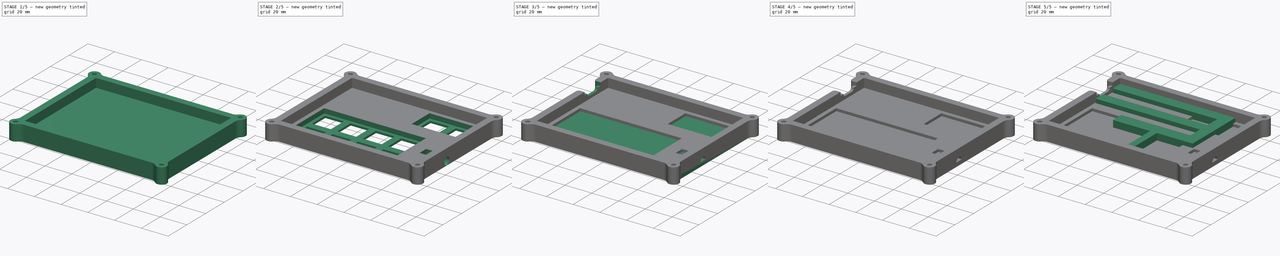
[diagram: build sequence overview — one tinted view per stage of 5, left to right]
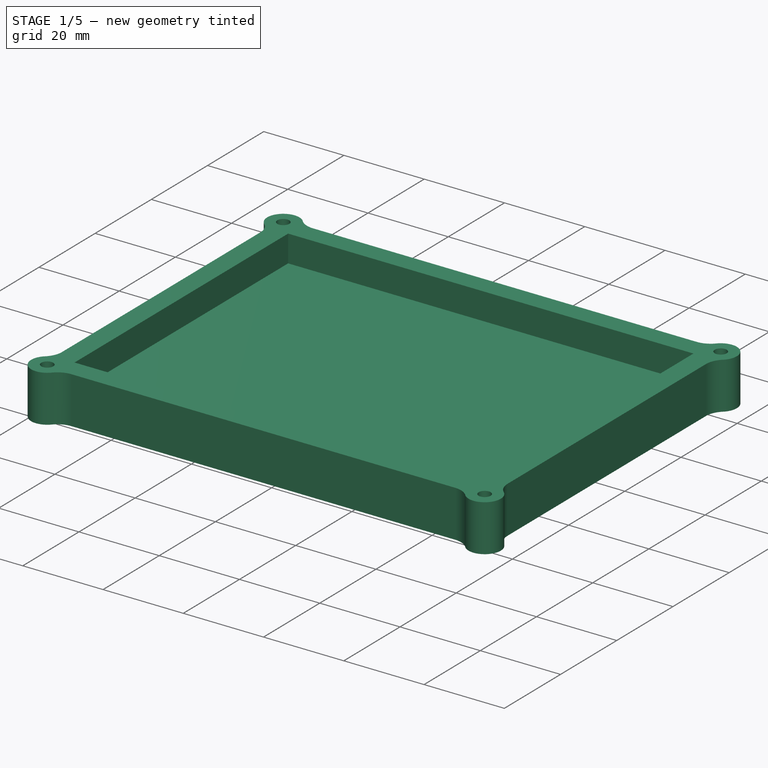
[diagram: stage 1 of 5 — iso view after this stage's code; geometry added in this stage tinted green]
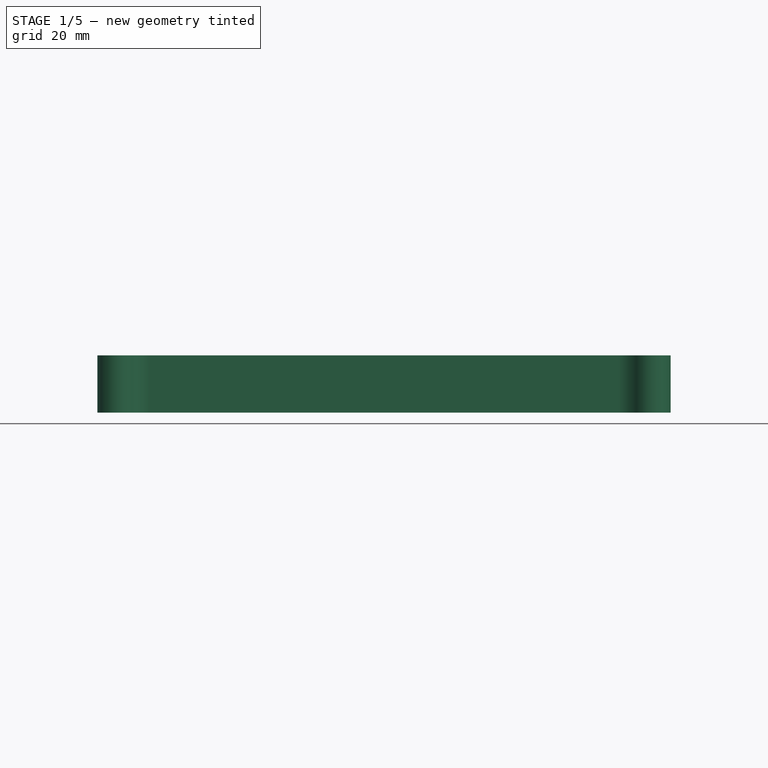
[diagram: stage 1 of 5 — front view after this stage's code; geometry added in this stage tinted green]
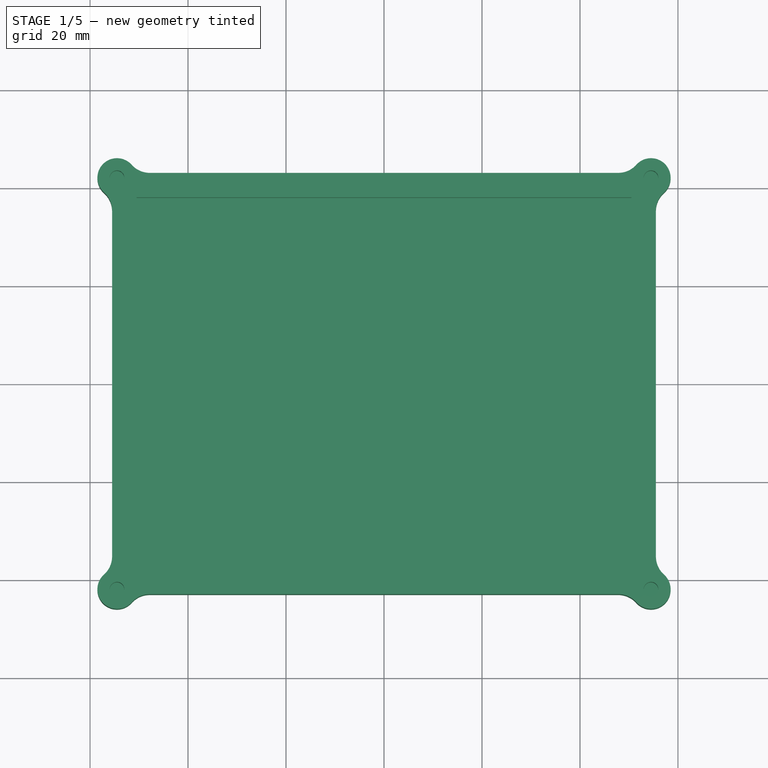
[diagram: stage 1 of 5 — top view after this stage's code; geometry added in this stage tinted green]
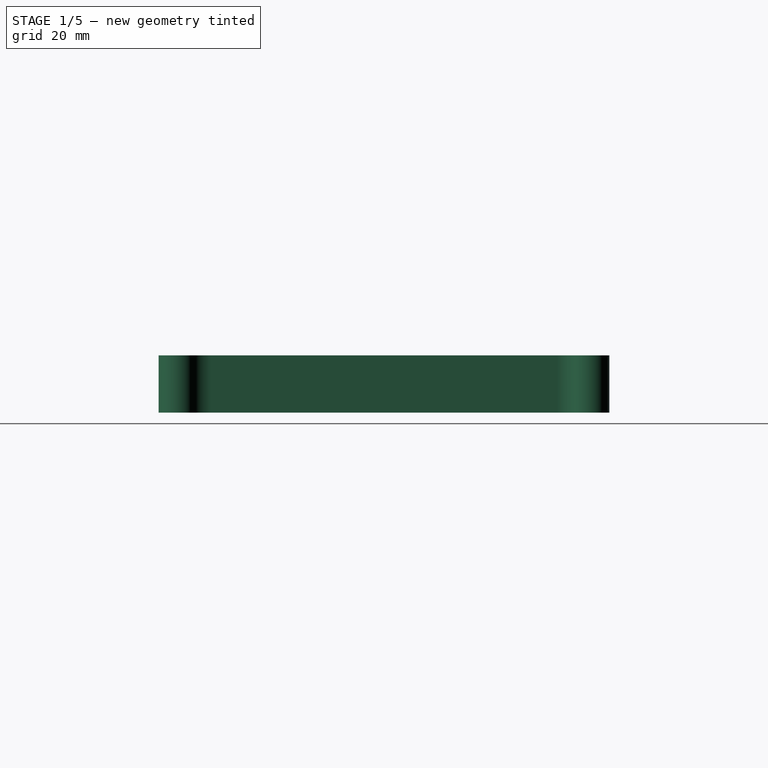
[diagram: stage 1 of 5 — right view after this stage's code; geometry added in this stage tinted green]
FCSTD DOCUMENT  (FreeCAD 1.0R39319 (Git))
Label: case
License: All rights reserved
LicenseURL: https://en.wikipedia.org/wiki/All_rights_reserved
objects: Sketcher::SketchObject×17, PartDesign::Pocket×13, PartDesign::Pad×6, PartDesign::Fillet×4, PartDesign::Body×2, PartDesign::ShapeBinder×2, App::VarSet×1
note: 107 computed .brp shape members not serialized (recipe doc carries the construction recipe); baked Part::Feature solids carry a one-line shape summary decoded from their .brp

FEATURE [PartDesign::Body] Body  label="Bottom"
  AllowCompound = false
  Group = -> [Sketch,Sketch001,Pad,Sketch002,Pad001,Sketch003,Pocket,Pocket001,Sketch004,Pad002,Sketch005,Pocket002,Fillet,Sketch006,Pad003,Sketch007,Pocket003,Fillet001]
  Origin = -> Origin
  Tip = -> Fillet001
FEATURE [PartDesign::ShapeBinder] ShapeBinder  label="ShapeBinder (Base)"
  Support = -> [Sketch]
  TraceSupport = false
FEATURE [PartDesign::Pad] Pad004  label="Top base"
  Direction = (0,0,1)
  Length = 11.7
  Length2 = 10
  Profile = -> ShapeBinder
  Refine = true
  Suppressed = false
  Type = 0
  expr: Length = VarSet.pcb_elevation + 1.6 mm + 5 mm + 0.1 mm
FEATURE [PartDesign::ShapeBinder] ShapeBinder001  label="ShapeBinder (Screw walls)"
  Support = -> [Sketch001]
  TraceSupport = false
FEATURE [PartDesign::Pad] Pad005  label="Top screw walls"
  BaseFeature = -> Pad004
  Direction = (0,0,1)
  Length = 11.7
  Length2 = 10
  Profile = -> ShapeBinder001
  Refine = true
  Suppressed = false
  Type = 0
  expr: Length = VarSet.pcb_elevation + 1.6 mm + 5 mm + 0.1 mm
FEATURE [Sketcher::SketchObject] Sketch008
  ArcFitTolerance = 1e-06
  AttachmentSupport = -> [Pad005]
  FullyConstrained = true
  MakeInternals = false
  MapMode = 5
  Placement = pos=(0,0,11.7) rot=(0,0,1;0rad)
  expr: Constraints[0] = VarSet.screw_head_diameter / 2 + VarSet.wall_thickness / 4 + VarSet.pcb_tolerance + 37.5 mm
  expr: Constraints[1] = VarSet.screw_thread_diameter
  expr: Constraints[2] = VarSet.screw_head_diameter / 2 + VarSet.wall_thickness / 4 + VarSet.pcb_tolerance + 50 mm
  sketch-geometry (4):
    g0: Circle CenterX=54.5 CenterY=42 CenterZ=0 NormalX=0 NormalY=0 NormalZ=1 AngleXU=0 Radius=1.5
    g1: Circle CenterX=-54.5 CenterY=42 CenterZ=0 NormalX=0 NormalY=0 NormalZ=1 AngleXU=0 Radius=1.5
    g2: Circle CenterX=-54.5 CenterY=-42 CenterZ=0 NormalX=0 NormalY=0 NormalZ=1 AngleXU=0 Radius=1.5
    g3: Circle CenterX=54.5 CenterY=-42 CenterZ=0 NormalX=0 NormalY=0 NormalZ=1 AngleXU=0 Radius=1.5
  constraints (10):
    c: Distance(g0,g-1) = 42
    c: Diameter(g0) = 3
    c: Distance(g0,g-2) = 54.5
    c: Equal(g3,g2)
    c: Equal(g2,g1)
    c: Equal(g1,g0)
    c: Symmetric(g1,g0,g-2)
    c: Vertical(g1,g2)
    c: Horizontal(g3,g2)
    c: Symmetric(g3,g0,g-1)
FEATURE [PartDesign::Pocket] Pocket004  label="Top screw holes"
  BaseFeature = -> Pad005
  Direction = (0,0,-1)
  Length = 7
  Length2 = 5
  Profile = -> Sketch008
  ReferenceAxis = -> Sketch008 [N_Axis]
  Refine = true
  Suppressed = false
  Type = 0
  expr: Length = VarSet.screw_length - VarSet.base_thickness
FEATURE [PartDesign::Fillet] Fillet002  label="Top screw-base fillets"
  Base = -> Pocket004 [Edge30,Edge31,Edge14,Edge32,Edge4,Edge2,Edge29,Edge28]
  BaseFeature = -> Pocket004
  Radius = 5
  Refine = true
  SupportTransform = false
  Suppressed = false
  UseAllEdges = false
  expr: Radius = VarSet.screw_base_fillet_radius
FEATURE [Sketcher::SketchObject] Sketch009
  ArcFitTolerance = 1e-06
  AttachmentSupport = -> [Fillet002]
  FullyConstrained = true
  MakeInternals = false
  MapMode = 5
  Placement = pos=(0,0,11.7) rot=(0,0,1;0rad)
  expr: Constraints[8] = 75 mm + VarSet.pcb_tolerance * 2
  expr: Constraints[9] = 100 mm + VarSet.pcb_tolerance * 2
  sketch-geometry (4):
    g0: LineSegment StartX=-50.5 StartY=38 StartZ=0 EndX=-50.5 EndY=-38 EndZ=0
    g1: LineSegment StartX=-50.5 StartY=-38 StartZ=0 EndX=50.5 EndY=-38 EndZ=0
    g2: LineSegment StartX=50.5 StartY=-38 StartZ=0 EndX=50.5 EndY=38 EndZ=0
    g3: LineSegment StartX=50.5 StartY=38 StartZ=0 EndX=-50.5 EndY=38 EndZ=0
  constraints (10):
    c: Coincident(g0,g1)
    c: Coincident(g1,g2)
    c: Coincident(g2,g3)
    c: Coincident(g3,g0)
    c: Vertical(g0)
    c: Horizontal(g1)
    c: Symmetric(g2,g0,g-2)
    c: Symmetric(g2,g1,g-1)
    c: DistanceY(g2,g2) = 76
    c: DistanceX(g3,g3) = 101
FEATURE [PartDesign::Pocket] Pocket005  label="Hole"
  BaseFeature = -> Fillet002
  Direction = (0,0,-1)
  Length = 6.7
  Length2 = 5
  Profile = -> Sketch009
  ReferenceAxis = -> Sketch009 [N_Axis]
  Refine = true
  Suppressed = false
  Type = 0
  expr: Length = VarSet.pcb_elevation + 1.6 mm + 0.1 mm
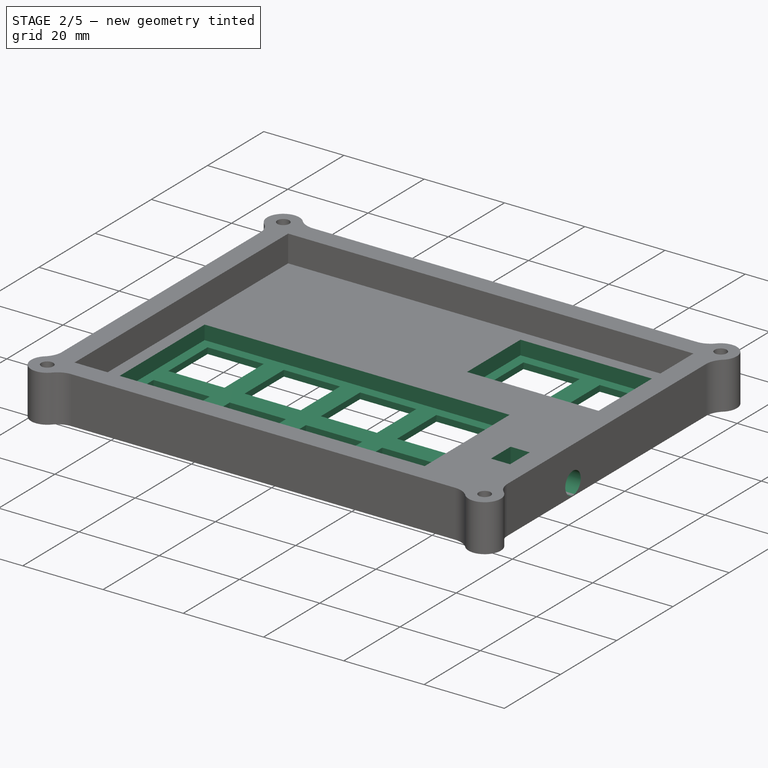
[diagram: stage 2 of 5 — iso view after this stage's code; geometry added in this stage tinted green]
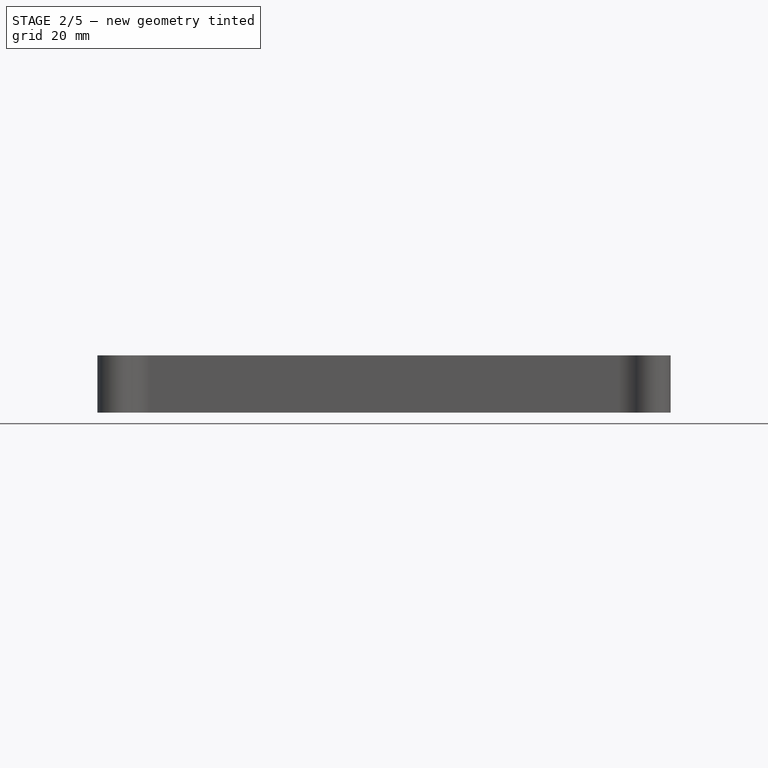
[diagram: stage 2 of 5 — front view after this stage's code; geometry added in this stage tinted green]
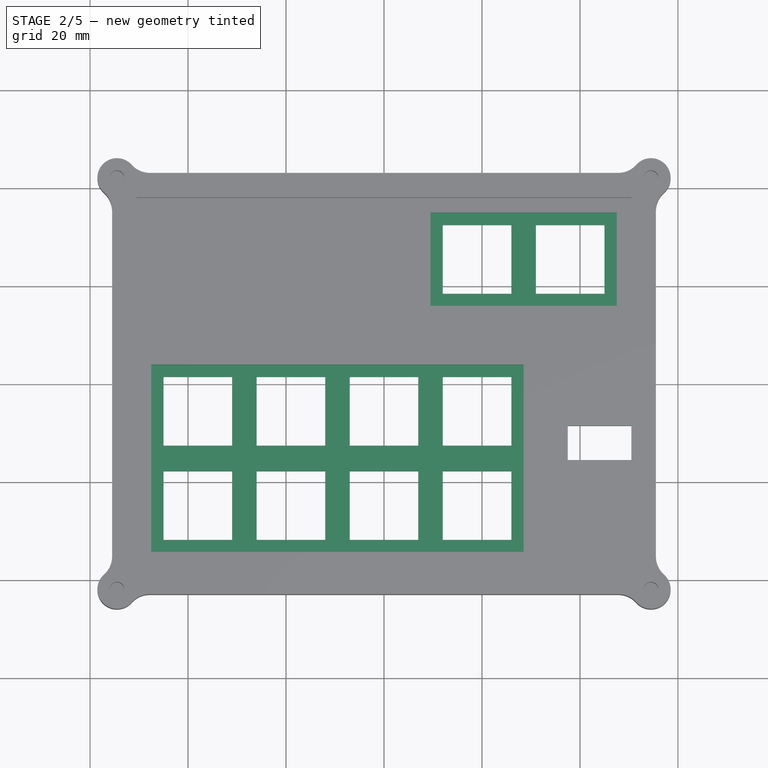
[diagram: stage 2 of 5 — top view after this stage's code; geometry added in this stage tinted green]
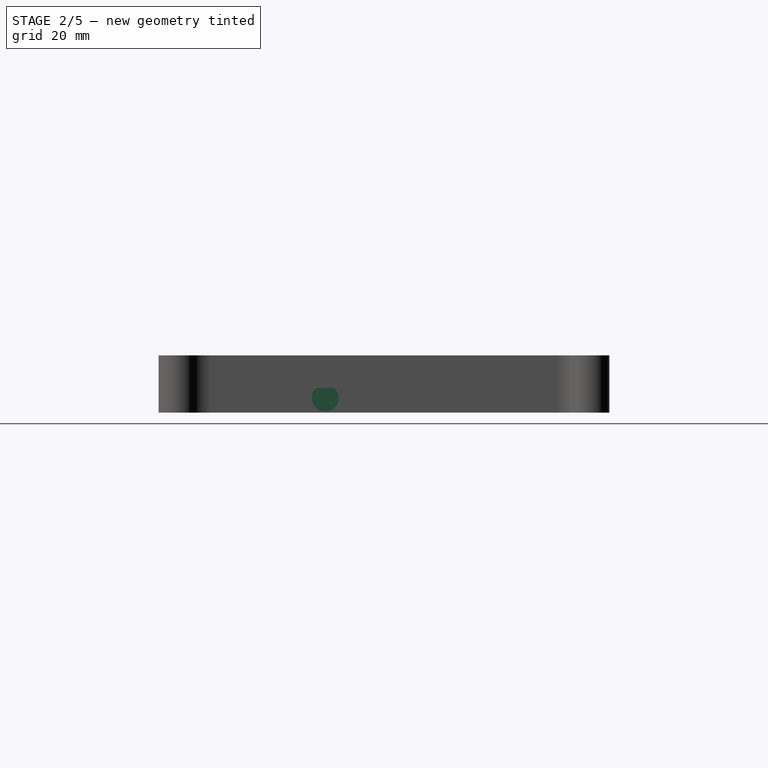
[diagram: stage 2 of 5 — right view after this stage's code; geometry added in this stage tinted green]
FEATURE [Sketcher::SketchObject] Sketch011
  ArcFitTolerance = 1e-06
  AttachmentSupport = -> [Pocket005]
  FullyConstrained = true
  MakeInternals = false
  MapMode = 5
  Placement = pos=(0,0,5) rot=(0,0,1;0rad)
  sketch-geometry (8):
    g0: LineSegment StartX=-47.5 StartY=4 StartZ=0 EndX=-47.5 EndY=-34.25 EndZ=0
    g1: LineSegment StartX=-47.5 StartY=-34.25 StartZ=0 EndX=28.5 EndY=-34.25 EndZ=0
    g2: LineSegment StartX=28.5 StartY=-34.25 StartZ=0 EndX=28.5 EndY=4 EndZ=0
    g3: LineSegment StartX=28.5 StartY=4 StartZ=0 EndX=-47.5 EndY=4 EndZ=0
    g4: LineSegment StartX=9.5 StartY=16 StartZ=0 EndX=47.5 EndY=16 EndZ=0
    g5: LineSegment StartX=47.5 StartY=16 StartZ=0 EndX=47.5 EndY=35 EndZ=0
    g6: LineSegment StartX=47.5 StartY=35 StartZ=0 EndX=9.5 EndY=35 EndZ=0
    g7: LineSegment StartX=9.5 StartY=35 StartZ=0 EndX=9.5 EndY=16 EndZ=0
  constraints (24):
    c: Coincident(g0,g1)
    c: Coincident(g1,g2)
    c: Coincident(g2,g3)
    c: Coincident(g3,g0)
    c: Vertical(g0)
    c: Vertical(g2)
    c: Horizontal(g1)
    c: Horizontal(g3)
    c: Distance(g0,g-1) = 4
    c: Distance(g0,g-2) = 47.5
    c: DistanceX(g1,g1) = 76
    c: DistanceY(g0,g0) = 38.25
    c: Coincident(g4,g5)
    c: Coincident(g5,g6)
    c: Coincident(g6,g7)
    c: Coincident(g7,g4)
    c: Horizontal(g4)
    c: Horizontal(g6)
    c: Vertical(g5)
    c: Vertical(g7)
    c: Distance(g4,g-1) = 16
    c: Distance(g4,g-2) = 9.5
    c: DistanceY(g7,g7) = 19
    c: DistanceX(g4,g4) = 38
FEATURE [PartDesign::Pocket] Pocket006  label="Key holes"
  BaseFeature = -> Pocket005
  Direction = (0,0,-1)
  Length = 3.5
  Length2 = 5
  Profile = -> Sketch011
  ReferenceAxis = -> Sketch011 [N_Axis]
  Refine = true
  Suppressed = false
  Type = 0
FEATURE [Sketcher::SketchObject] Sketch012
  ArcFitTolerance = 1e-06
  AttachmentSupport = -> [Pocket006]
  FullyConstrained = true
  MakeInternals = false
  MapMode = 5
  Placement = pos=(0,0,1.5) rot=(0,0,1;0rad)
  expr: Constraints[12] = 14 mm + VarSet.switch_tolerance * 2
  sketch-geometry (66):
    g0: LineSegment StartX=-45 StartY=-12.5 StartZ=0 EndX=-45 EndY=1.5 EndZ=0
    g1: LineSegment StartX=-45 StartY=1.5 StartZ=0 EndX=-31 EndY=1.5 EndZ=0
    g2: LineSegment StartX=-31 StartY=1.5 StartZ=0 EndX=-31 EndY=-12.5 EndZ=0
    g3: LineSegment StartX=-31 StartY=-12.5 StartZ=0 EndX=-45 EndY=-12.5 EndZ=0
    g4: LineSegment [constr] StartX=-38 StartY=-12.5 StartZ=0 EndX=-38 EndY=1.5 EndZ=0
    g5: GeomPoint [constr] X=-38 Y=-5.5 Z=0
    g6: LineSegment StartX=-26 StartY=1.5 StartZ=0 EndX=-26 EndY=-12.5 EndZ=0
    g7: LineSegment StartX=-26 StartY=-12.5 StartZ=0 EndX=-12 EndY=-12.5 EndZ=0
    g8: LineSegment StartX=-12 StartY=-12.5 StartZ=0 EndX=-12 EndY=1.5 EndZ=0
    g9: LineSegment StartX=-12 StartY=1.5 StartZ=0 EndX=-26 EndY=1.5 EndZ=0
    g10: LineSegment StartX=-7 StartY=1.5 StartZ=0 EndX=-7 EndY=-12.5 EndZ=0
    g11: LineSegment StartX=-7 StartY=-12.5 StartZ=0 EndX=7 EndY=-12.5 EndZ=0
    g12: LineSegment StartX=7 StartY=-12.5 StartZ=0 EndX=7 EndY=1.5 EndZ=0
    g13: LineSegment StartX=7 StartY=1.5 StartZ=0 EndX=-7 EndY=1.5 EndZ=0
    g14: LineSegment StartX=12 StartY=1.5 StartZ=0 EndX=12 EndY=-12.5 EndZ=0
    g15: LineSegment StartX=12 StartY=-12.5 StartZ=0 EndX=26 EndY=-12.5 EndZ=0
    g16: LineSegment StartX=26 StartY=-12.5 StartZ=0 EndX=26 EndY=1.5 EndZ=0
    g17: LineSegment StartX=26 StartY=1.5 StartZ=0 EndX=12 EndY=1.5 EndZ=0
    g18: LineSegment StartX=-45 StartY=-17.75 StartZ=0 EndX=-45 EndY=-31.75 EndZ=0
    g19: LineSegment StartX=-45 StartY=-31.75 StartZ=0 EndX=-31 EndY=-31.75 EndZ=0
    g20: LineSegment StartX=-31 StartY=-31.75 StartZ=0 EndX=-31 EndY=-17.75 EndZ=0
    g21: LineSegment StartX=-31 StartY=-17.75 StartZ=0 EndX=-45 EndY=-17.75 EndZ=0
    g22: LineSegment StartX=-26 StartY=-17.75 StartZ=0 EndX=-26 EndY=-31.75 EndZ=0
    g23: LineSegment StartX=-26 StartY=-31.75 StartZ=0 EndX=-12 EndY=-31.75 EndZ=0
    g24: LineSegment StartX=-12 StartY=-31.75 StartZ=0 EndX=-12 EndY=-17.75 EndZ=0
    g25: LineSegment StartX=-12 StartY=-17.75 StartZ=0 EndX=-26 EndY=-17.75 EndZ=0
    g26: LineSegment StartX=-7 StartY=-17.75 StartZ=0 EndX=-7 EndY=-31.75 EndZ=0
    g27: LineSegment StartX=-7 StartY=-31.75 StartZ=0 EndX=7 EndY=-31.75 EndZ=0
    g28: LineSegment StartX=7 StartY=-31.75 StartZ=0 EndX=7 EndY=-17.75 EndZ=0
    g29: LineSegment StartX=7 StartY=-17.75 StartZ=0 EndX=-7 EndY=-17.75 EndZ=0
    g30: LineSegment StartX=12 StartY=-17.75 StartZ=0 EndX=12 EndY=-31.75 EndZ=0
    g31: LineSegment StartX=12 StartY=-31.75 StartZ=0 EndX=26 EndY=-31.75 EndZ=0
    g32: LineSegment StartX=26 StartY=-31.75 StartZ=0 EndX=26 EndY=-17.75 EndZ=0
    g33: LineSegment StartX=26 StartY=-17.75 StartZ=0 EndX=12 EndY=-17.75 EndZ=0
    g34: LineSegment [constr] StartX=-19 StartY=1.5 StartZ=0 EndX=-19 EndY=-12.5 EndZ=0
    g35: GeomPoint [constr] X=-19 Y=-5.5 Z=0
    g36: LineSegment [constr] StartX=1.6e-15 StartY=1.5 StartZ=0 EndX=1.9e-15 EndY=-12.5 EndZ=0
    g37: LineSegment [constr] StartX=19 StartY=1.5 StartZ=0 EndX=19 EndY=-12.5 EndZ=0
    g38: LineSegment [constr] StartX=19 StartY=-17.75 StartZ=0 EndX=19 EndY=-31.75 EndZ=0
    g39: LineSegment [constr] StartX=-3e-16 StartY=-17.75 StartZ=0 EndX=-2e-16 EndY=-31.75 EndZ=0
    g40: LineSegment [constr] StartX=-19 StartY=-17.75 StartZ=0 EndX=-19 EndY=-31.75 EndZ=0
    g41: LineSegment [constr] StartX=-38 StartY=-17.75 StartZ=0 EndX=-38 EndY=-31.75 EndZ=0
    g42: GeomPoint [constr] X=1.7e-15 Y=-5.5 Z=0
    g43: GeomPoint [constr] X=19 Y=-5.5 Z=0
    g44: GeomPoint [constr] X=19 Y=-24.75 Z=0
    g45: GeomPoint [constr] X=0 Y=-24.75 Z=0
    g46: GeomPoint [constr] X=-19 Y=-24.75 Z=0
    g47: GeomPoint [constr] X=-38 Y=-24.75 Z=0
    g48: LineSegment [constr] StartX=-38 StartY=-5.5 StartZ=0 EndX=-19 EndY=-5.5 EndZ=0
    g49: LineSegment [constr] StartX=-19 StartY=-5.5 StartZ=0 EndX=0 EndY=-5.5 EndZ=0
    g50: LineSegment [constr] StartX=1.7e-15 StartY=-5.5 StartZ=0 EndX=19 EndY=-5.5 EndZ=0
    g51: LineSegment [constr] StartX=19 StartY=-24.75 StartZ=0 EndX=0 EndY=-24.75 EndZ=0
    g52: LineSegment [constr] StartX=0 StartY=-24.75 StartZ=0 EndX=-19 EndY=-24.75 EndZ=0
    g53: LineSegment [constr] StartX=-19 StartY=-24.75 StartZ=0 EndX=-38 EndY=-24.75 EndZ=0
    g54: LineSegment StartX=12 StartY=18.5 StartZ=0 EndX=26 EndY=18.5 EndZ=0
    g55: LineSegment StartX=26 StartY=18.5 StartZ=0 EndX=26 EndY=32.5 EndZ=0
    g56: LineSegment StartX=26 StartY=32.5 StartZ=0 EndX=12 EndY=32.5 EndZ=0
    g57: LineSegment StartX=12 StartY=32.5 StartZ=0 EndX=12 EndY=18.5 EndZ=0
    g58: LineSegment StartX=31 StartY=18.5 StartZ=0 EndX=45 EndY=18.5 EndZ=0
    g59: LineSegment StartX=45 StartY=18.5 StartZ=0 EndX=45 EndY=32.5 EndZ=0
    g60: LineSegment StartX=45 StartY=32.5 StartZ=0 EndX=31 EndY=32.5 EndZ=0
    g61: LineSegment StartX=31 StartY=32.5 StartZ=0 EndX=31 EndY=18.5 EndZ=0
    g62: LineSegment [constr] StartX=19 StartY=32.5 StartZ=0 EndX=19 EndY=18.5 EndZ=0
    g63: LineSegment [constr] StartX=38 StartY=32.5 StartZ=0 EndX=38 EndY=18.5 EndZ=0
    g64: GeomPoint [constr] X=19 Y=25.5 Z=0
    g65: GeomPoint [constr] X=38 Y=25.5 Z=0
  constraints (162):
    c: Coincident(g0,g1)
    c: Coincident(g1,g2)
    c: Coincident(g2,g3)
    c: Coincident(g3,g0)
    c: Vertical(g0)
    c: Vertical(g2)
    c: Horizontal(g1)
    c: Horizontal(g3)
    c: Symmetric(g1,g1,g4)
    c: Symmetric(g3,g3,g4)
    c: Symmetric(g4,g4,g5)
    c: Distance(g5,g-1) = 5.5
    c: DistanceY(g0,g0) = 14
    c: Distance(g5,g-2) = 38
    c: Coincident(g6,g7)
    c: Coincident(g7,g8)
    c: Coincident(g8,g9)
    c: Coincident(g9,g6)
    c: Vertical(g6)
    c: Vertical(g8)
    c: Horizontal(g7)
    c: Horizontal(g9)
    c: Coincident(g10,g11)
    c: Coincident(g11,g12)
    c: Coincident(g12,g13)
    c: Coincident(g13,g10)
    c: Vertical(g10)
    c: Vertical(g12)
    c: Horizontal(g11)
    c: Horizontal(g13)
    c: Coincident(g14,g15)
    c: Coincident(g15,g16)
    c: Coincident(g16,g17)
    c: Coincident(g17,g14)
    c: Vertical(g14)
    c: Vertical(g16)
    c: Horizontal(g15)
    c: Horizontal(g17)
    c: Coincident(g18,g19)
    c: Coincident(g19,g20)
    c: Coincident(g20,g21)
    c: Coincident(g21,g18)
    c: Vertical(g18)
    c: Vertical(g20)
    c: Horizontal(g19)
    c: Horizontal(g21)
    c: Coincident(g22,g23)
    c: Coincident(g23,g24)
    c: Coincident(g24,g25)
    c: Coincident(g25,g22)
    c: Vertical(g22)
    c: Vertical(g24)
    c: Horizontal(g23)
    c: Horizontal(g25)
    c: Coincident(g26,g27)
    c: Coincident(g27,g28)
    c: Coincident(g28,g29)
    c: Coincident(g29,g26)
    c: Vertical(g26)
    c: Vertical(g28)
    c: Horizontal(g27)
    c: Horizontal(g29)
    c: Coincident(g30,g31)
    c: Coincident(g31,g32)
    c: Coincident(g32,g33)
    c: Coincident(g33,g30)
    c: Vertical(g30)
    c: Vertical(g32)
    c: Horizontal(g31)
    c: Horizontal(g33)
    c: Equal(g0,g1)
    c: Equal(g1,g6)
    c: Equal(g6,g9)
    c: Equal(g9,g10)
    c: Equal(g10,g13)
    c: Equal(g13,g14)
    c: Equal(g14,g17)
    c: Equal(g30,g33)
    c: Equal(g33,g26)
    c: Equal(g26,g29)
    c: Equal(g29,g22)
    c: Equal(g22,g25)
    c: Equal(g25,g18)
    c: Equal(g18,g21)
    c: Symmetric(g7,g7,g34)
    c: Symmetric(g9,g9,g34)
    c: Symmetric(g34,g34,g35)
    c: Symmetric(g36,g36,g42)
    c: Symmetric(g13,g13,g36)
    c: Symmetric(g11,g11,g36)
    c: Symmetric(g37,g37,g43)
    c: Symmetric(g17,g17,g37)
    c: Symmetric(g15,g15,g37)
    c: Symmetric(g38,g38,g44)
    c: Symmetric(g33,g33,g38)
    c: Symmetric(g31,g31,g38)
    c: Symmetric(g39,g39,g45)
    c: Symmetric(g29,g29,g39)
    c: Symmetric(g27,g27,g39)
    c: Symmetric(g40,g40,g46)
    c: Symmetric(g23,g23,g40)
    c: Symmetric(g25,g25,g40)
    c: Symmetric(g41,g41,g47)
    c: Symmetric(g21,g21,g41)
    c: Symmetric(g19,g19,g41)
    c: DistanceY(g47,g5) = 19.25
    c: Vertical(g0,g18)
    c: Horizontal(g0,g6)
    c: Horizontal(g6,g10)
    c: Horizontal(g10,g14)
    c: Horizontal(g18,g22)
    c: Horizontal(g22,g26)
    c: Horizontal(g26,g30)
    c: Coincident(g48,g5)
    c: Coincident(g48,g35)
    c: Coincident(g49,g35)
    c: Coincident(g49,g42)
    c: Coincident(g50,g42)
    c: Coincident(g50,g43)
    c: Coincident(g51,g44)
    c: Coincident(g51,g45)
    c: Coincident(g52,g45)
    c: Coincident(g52,g46)
    c: Coincident(g53,g46)
    c: Coincident(g53,g47)
    c: Equal(g53,g52)
    c: Equal(g52,g51)
    c: Equal(g48,g49)
    c: Equal(g49,g50)
    c: DistanceX(g48,g48) = 19
    c: DistanceX(g53,g53) = 19
    c: Coincident(g54,g55)
    c: Coincident(g55,g56)
    c: Coincident(g56,g57)
    c: Coincident(g57,g54)
    c: Horizontal(g54)
    c: Horizontal(g56)
    c: Vertical(g55)
    c: Vertical(g57)
    c: Coincident(g58,g59)
    c: Coincident(g59,g60)
    c: Coincident(g60,g61)
    c: Coincident(g61,g58)
    c: Horizontal(g58)
    c: Horizontal(g60)
    c: Vertical(g59)
    c: Vertical(g61)
    c: Horizontal(g54,g58)
    c: Equal(g58,g54)
    c: Equal(g54,g57)
    c: Equal(g57,g61)
    c: Symmetric(g63,g63,g65)
    c: Symmetric(g62,g62,g64)
    c: Symmetric(g56,g56,g62)
    c: Symmetric(g54,g54,g62)
    c: Symmetric(g58,g58,g63)
    c: Symmetric(g60,g60,g63)
    c: DistanceX(g64,g65) = 19
    c: DistanceY(g57,g57) = 14
    c: Distance(g54,g-2) = 12
    c: Distance(g54,g-1) = 18.5
    c: Equal(g30,g17)
FEATURE [PartDesign::Pocket] Pocket007  label="Key holes 2"
  BaseFeature = -> Pocket006
  Direction = (0,0,-1)
  Length = 1.5
  Length2 = 5
  Profile = -> Sketch012
  ReferenceAxis = -> Sketch012 [N_Axis]
  Refine = true
  Suppressed = false
  Type = 0
FEATURE [Sketcher::SketchObject] Sketch015
  ArcFitTolerance = 1e-06
  FullyConstrained = true
  MakeInternals = false
  MapMode = 5
  Placement = pos=(0,0,5) rot=(0,0,1;0rad)
  expr: Constraints[11] = 12.5 mm + VarSet.pcb_tolerance
  sketch-geometry (4):
    g0: LineSegment StartX=50.5 StartY=-15.5 StartZ=0 EndX=50.5 EndY=-8.5 EndZ=0
    g1: LineSegment StartX=50.5 StartY=-8.5 StartZ=0 EndX=37.5 EndY=-8.5 EndZ=0
    g2: LineSegment StartX=50.5 StartY=-15.5 StartZ=0 EndX=37.5 EndY=-15.5 EndZ=0
    g3: LineSegment StartX=37.5 StartY=-15.5 StartZ=0 EndX=37.5 EndY=-8.5 EndZ=0
  constraints (12):
    c: PointOnObject(g0,g-3)
    c: Vertical(g0)
    c: DistanceY(g0,g0) = 7
    c: Distance(g0,g-1) = 8.5
    c: Coincident(g1,g0)
    c: Horizontal(g1)
    c: Coincident(g2,g0)
    c: Horizontal(g2)
    c: Coincident(g3,g2)
    c: Coincident(g3,g1)
    c: Vertical(g3)
    c: DistanceX(g1,g1) = 13
FEATURE [PartDesign::Pocket] Pocket010  label="Jack body hole"
  BaseFeature = -> Pocket007
  Direction = (0,0,-1)
  Length = 5
  Length2 = 5
  Profile = -> Sketch015
  ReferenceAxis = -> Sketch015 [N_Axis]
  Refine = true
  Suppressed = false
  Type = 0
FEATURE [Sketcher::SketchObject] Sketch016
  ArcFitTolerance = 1e-06
  AttachmentSupport = -> [Pocket010]
  ExternalGeometry = -> [Pocket010]
  FullyConstrained = true
  MakeInternals = false
  MapMode = 5
  Placement = pos=(55.5,5e-15,0) rot=(0.57735,0.57735,0.57735;2.0944rad)
  sketch-geometry (3):
    g0: LineSegment [constr] StartX=-15.5 StartY=5 StartZ=0 EndX=-8.5 EndY=5 EndZ=0
    g1: Circle CenterX=-12 CenterY=3 CenterZ=0 NormalX=0 NormalY=0 NormalZ=1 AngleXU=0 Radius=2.75
    g2: LineSegment [constr] StartX=-12 StartY=3 StartZ=0 EndX=-12 EndY=5 EndZ=0
  constraints (7):
    c: Coincident(g0,g-3)
    c: Coincident(g0,g-4)
    c: Diameter(g1) = 5.5
    c: Coincident(g2,g1)
    c: Symmetric(g0,g0,g2)
    c: Vertical(g2)
    c: DistanceY(g2,g2) = -2
FEATURE [PartDesign::Pocket] Pocket011  label="Jack hole"
  BaseFeature = -> Pocket010
  Direction = (-1,0,0)
  Length = 5
  Length2 = 5
  Profile = -> Sketch016
  ReferenceAxis = -> Sketch016 [N_Axis]
  Refine = true
  Suppressed = false
  Type = 0
  expr: Length = VarSet.wall_thickness
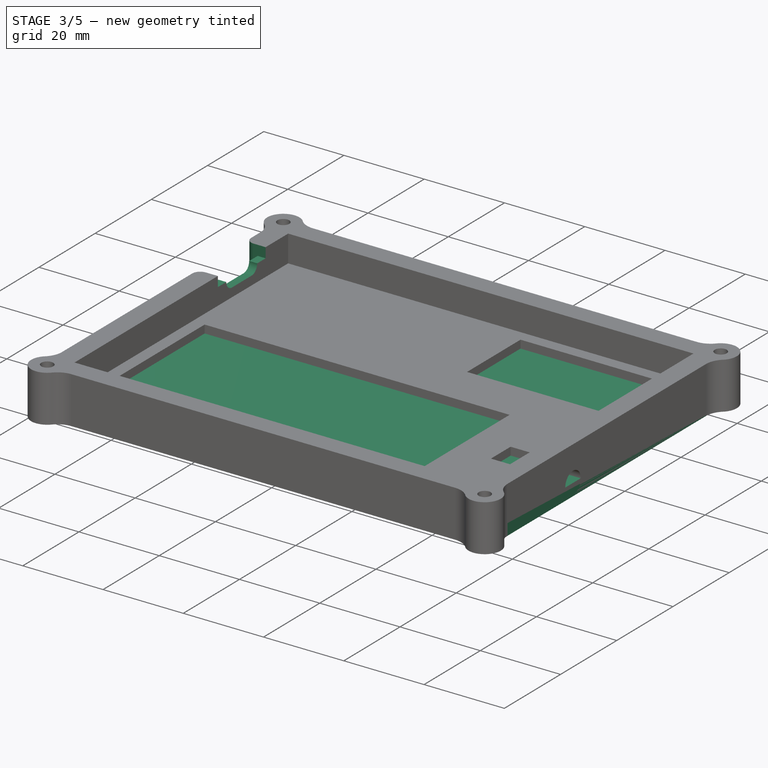
[diagram: stage 3 of 5 — iso view after this stage's code; geometry added in this stage tinted green]
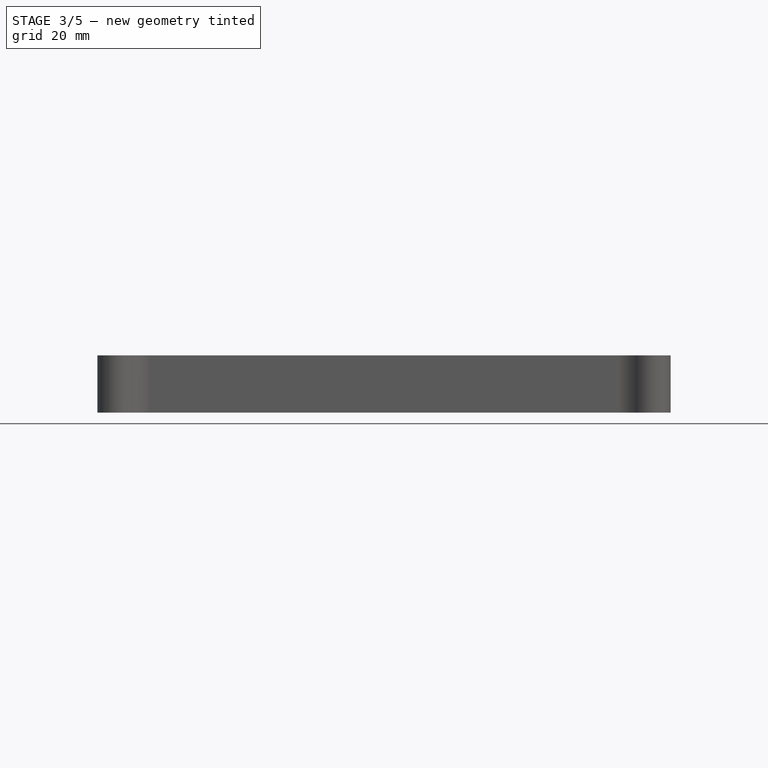
[diagram: stage 3 of 5 — front view after this stage's code; geometry added in this stage tinted green]
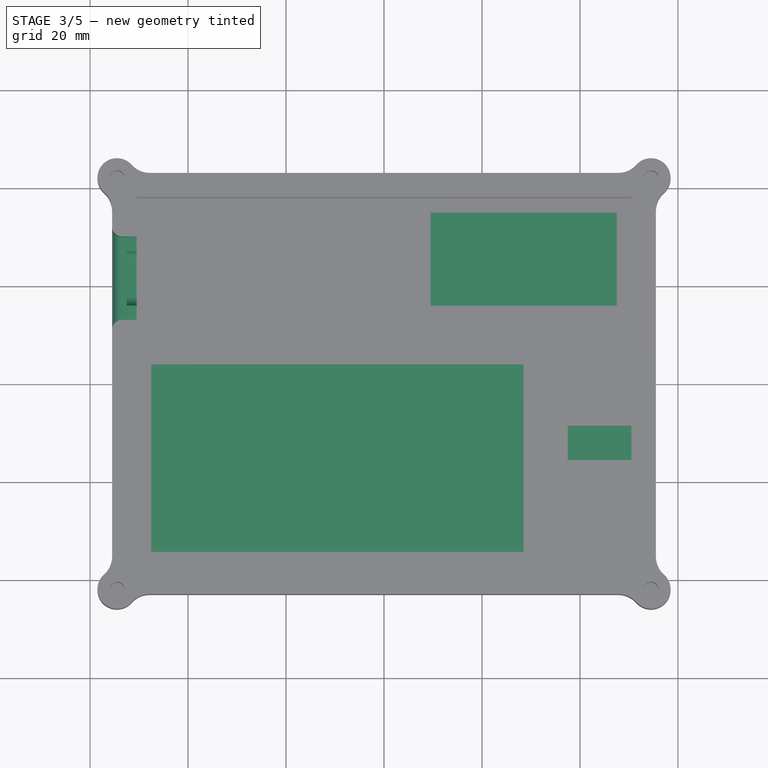
[diagram: stage 3 of 5 — top view after this stage's code; geometry added in this stage tinted green]
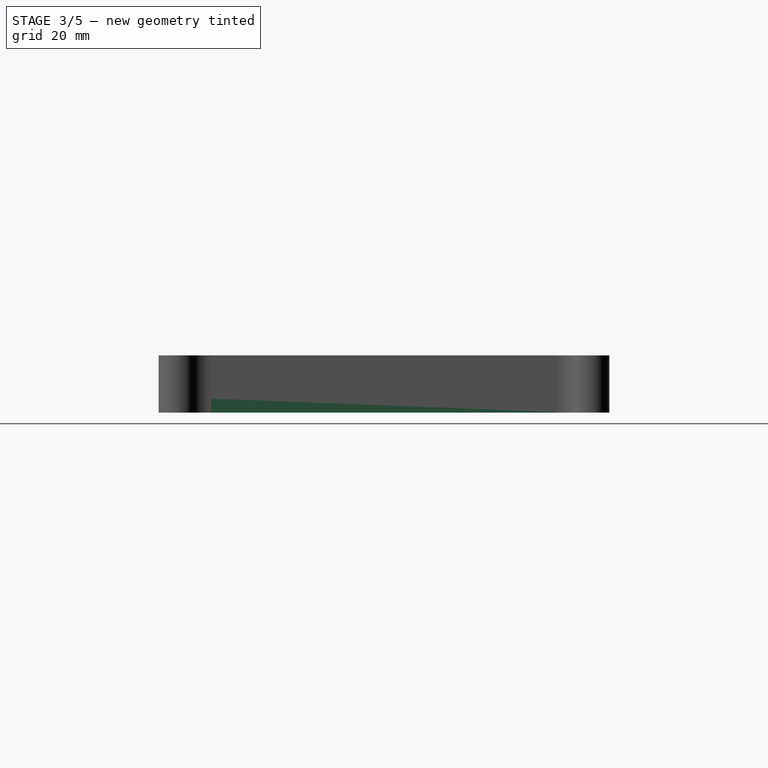
[diagram: stage 3 of 5 — right view after this stage's code; geometry added in this stage tinted green]
FEATURE [Sketcher::SketchObject] Sketch
  ArcFitTolerance = 1e-06
  AttachmentSupport = -> [XY_Plane]
  FullyConstrained = true
  MakeInternals = false
  MapMode = 5
  expr: Constraints[23] = VarSet.corner_radius
  expr: Constraints[4] = (VarSet.wall_thickness + VarSet.pcb_tolerance) * 2 + 75 mm
  expr: Constraints[5] = (VarSet.wall_thickness + VarSet.pcb_tolerance) * 2 + 100 mm
  sketch-geometry (12):
    g0: LineSegment StartX=51.5 StartY=43 StartZ=0 EndX=-51.5 EndY=43 EndZ=0
    g1: LineSegment StartX=-55.5 StartY=39 StartZ=0 EndX=-55.5 EndY=-39 EndZ=0
    g2: LineSegment StartX=-51.5 StartY=-43 StartZ=0 EndX=51.5 EndY=-43 EndZ=0
    g3: LineSegment StartX=55.5 StartY=-39 StartZ=0 EndX=55.5 EndY=39 EndZ=0
    g4: ArcOfCircle CenterX=51.5 CenterY=-39 CenterZ=0 NormalX=0 NormalY=0 NormalZ=1 AngleXU=0 Radius=4 StartAngle=4.71239 EndAngle=6.28319
    g5: GeomPoint [constr] X=55.5 Y=-43 Z=0
    g6: ArcOfCircle CenterX=51.5 CenterY=39 CenterZ=0 NormalX=0 NormalY=0 NormalZ=1 AngleXU=0 Radius=4 StartAngle=2e-16 EndAngle=1.5708
    g7: GeomPoint [constr] X=55.5 Y=43 Z=0
    g8: ArcOfCircle CenterX=-51.5 CenterY=39 CenterZ=0 NormalX=0 NormalY=0 NormalZ=1 AngleXU=0 Radius=4 StartAngle=1.5708 EndAngle=3.14159
    g9: GeomPoint [constr] X=-55.5 Y=43 Z=0
    g10: ArcOfCircle CenterX=-51.5 CenterY=-39 CenterZ=0 NormalX=0 NormalY=0 NormalZ=1 AngleXU=0 Radius=4 StartAngle=3.14159 EndAngle=4.71239
    g11: GeomPoint [constr] X=-55.5 Y=-43 Z=0
  constraints (24):
    c: Horizontal(g2)
    c: Vertical(g1)
    c: Symmetric(g7,g5,g-1)
    c: Symmetric(g7,g9,g-2)
    c: DistanceY(g5,g7) = 86
    c: DistanceX(g9,g7) = 111
    c: PointOnObject(g5,g2)
    c: PointOnObject(g5,g3)
    c: Tangent(g2,g4) = -1.5708
    c: Tangent(g3,g4) = -1.5708
    c: PointOnObject(g7,g3)
    c: Tangent(g3,g6) = -1.5708
    c: Tangent(g0,g6) = -1.5708
    c: Tangent(g0,g8) = -1.5708
    c: Tangent(g1,g8) = -1.5708
    c: PointOnObject(g11,g1)
    c: PointOnObject(g11,g2)
    c: Tangent(g1,g10) = -1.5708
    c: Tangent(g2,g10) = -1.5708
    c: Horizontal(g4,g10)
    c: Vertical(g10,g8)
    c: Symmetric(g4,g6,g-1)
    c: Symmetric(g6,g8,g-2)
    c: DistanceY(g8,g0) = 4
FEATURE [App::VarSet] VarSet
  base_thickness = 3
  corner_radius = 4
  pcb_elevation = 5
  pcb_tolerance = 0.5
  screw_base_fillet_radius = 5
  screw_head_diameter = 5.5
  screw_head_height = 2
  screw_length = 10
  screw_thread_diameter = 3
  switch_tolerance = 0
  usb_bonus_width = 3
  usb_outer_fillet_radius = 2
  usb_wall_thickness = 2
  wall_thickness = 5
FEATURE [Sketcher::SketchObject] Sketch001
  ArcFitTolerance = 1e-06
  AttachmentSupport = -> [XY_Plane]
  FullyConstrained = true
  MakeInternals = false
  MapMode = 5
  expr: Constraints[0] = VarSet.screw_thread_diameter + VarSet.wall_thickness
  expr: Constraints[1] = VarSet.screw_head_diameter / 2 + VarSet.wall_thickness / 4 + VarSet.pcb_tolerance + 37.5 mm
  expr: Constraints[2] = VarSet.screw_head_diameter / 2 + VarSet.wall_thickness / 4 + VarSet.pcb_tolerance + 50 mm
  expr: Constraints[3] = VarSet.screw_thread_diameter + VarSet.wall_thickness
  expr: Constraints[4] = VarSet.screw_thread_diameter + VarSet.wall_thickness
  expr: Constraints[5] = VarSet.screw_thread_diameter + VarSet.wall_thickness
  sketch-geometry (4):
    g0: Circle CenterX=54.5 CenterY=42 CenterZ=0 NormalX=0 NormalY=0 NormalZ=1 AngleXU=0 Radius=4
    g1: Circle CenterX=-54.5 CenterY=42 CenterZ=0 NormalX=0 NormalY=0 NormalZ=1 AngleXU=0 Radius=4
    g2: Circle CenterX=54.5 CenterY=-42 CenterZ=0 NormalX=0 NormalY=0 NormalZ=1 AngleXU=0 Radius=4
    g3: Circle CenterX=-54.5 CenterY=-42 CenterZ=0 NormalX=0 NormalY=0 NormalZ=1 AngleXU=0 Radius=4
  constraints (10):
    c: Diameter(g0) = 8
    c: Distance(g0,g-1) = 42
    c: Distance(g0,g-2) = 54.5
    c: Diameter(g1) = 8
    c: Diameter(g2) = 8
    c: Diameter(g3) = 8
    c: Horizontal(g2,g3)
    c: Vertical(g3,g1)
    c: Symmetric(g2,g0,g-1)
    c: Symmetric(g1,g0,g-2)
FEATURE [PartDesign::Pad] Pad  label="Base"
  Direction = (0,0,1)
  Length = 3
  Length2 = 10
  Profile = -> Sketch
  ReferenceAxis = -> Sketch [N_Axis]
  Refine = true
  Suppressed = false
  Type = 0
  expr: Length = VarSet.base_thickness
FEATURE [Sketcher::SketchObject] Sketch017
  ArcFitTolerance = 1e-06
  AttachmentSupport = -> [Pocket007]
  FullyConstrained = true
  MakeInternals = false
  MapMode = 5
  Placement = pos=(0,0,11.7) rot=(0,0,1;0rad)
  expr: Constraints[10] = 37.5 mm - 11.5 mm + 1 mm + VarSet.usb_bonus_width
  expr: Constraints[11] = 50 mm + VarSet.pcb_tolerance
  expr: Constraints[8] = VarSet.wall_thickness
  expr: Constraints[9] = VarSet.usb_bonus_width * 2 + 11 mm
  sketch-geometry (4):
    g0: LineSegment StartX=-55.5 StartY=30 StartZ=0 EndX=-55.5 EndY=13 EndZ=0
    g1: LineSegment StartX=-55.5 StartY=13 StartZ=0 EndX=-50.5 EndY=13 EndZ=0
    g2: LineSegment StartX=-50.5 StartY=13 StartZ=0 EndX=-50.5 EndY=30 EndZ=0
    g3: LineSegment StartX=-50.5 StartY=30 StartZ=0 EndX=-55.5 EndY=30 EndZ=0
  constraints (12):
    c: Coincident(g0,g1)
    c: Coincident(g1,g2)
    c: Coincident(g2,g3)
    c: Coincident(g3,g0)
    c: Vertical(g0)
    c: Vertical(g2)
    c: Horizontal(g1)
    c: Horizontal(g3)
    c: DistanceX(g1,g1) = 5
    c: DistanceY(g2,g2) = 17
    c: Distance(g2,g-1) = 30
    c: Distance(g2,g-2) = 50.5
FEATURE [PartDesign::Pocket] Pocket012  label="USB bottom prop hole"
  BaseFeature = -> Pocket011
  Direction = (0,0,-1)
  Length = 2.5
  Length2 = 5
  Profile = -> Sketch017
  ReferenceAxis = -> Sketch017 [N_Axis]
  Refine = true
  Suppressed = false
  Type = 0
  expr: Length = VarSet.pcb_elevation - 2.5 mm
FEATURE [Sketcher::SketchObject] Sketch018
  ArcFitTolerance = 1e-06
  AttachmentSupport = -> [Pocket012]
  ExternalGeometry = -> [Pocket012]
  FullyConstrained = true
  MakeInternals = false
  MapMode = 5
  Placement = pos=(0,0,9.2) rot=(0,0,1;0rad)
  expr: Constraints[10] = VarSet.pcb_tolerance + 50 mm + VarSet.usb_wall_thickness
  expr: Constraints[11] = 37.5 mm - 11.5 mm + 1 mm + VarSet.usb_bonus_width
  expr: Constraints[9] = VarSet.wall_thickness - VarSet.usb_wall_thickness
  sketch-geometry (4):
    g0: LineSegment StartX=-55.5 StartY=30 StartZ=0 EndX=-55.5 EndY=13 EndZ=0
    g1: LineSegment StartX=-55.5 StartY=13 StartZ=0 EndX=-52.5 EndY=13 EndZ=0
    g2: LineSegment StartX=-52.5 StartY=13 StartZ=0 EndX=-52.5 EndY=30 EndZ=0
    g3: LineSegment StartX=-52.5 StartY=30 StartZ=0 EndX=-55.5 EndY=30 EndZ=0
  constraints (12):
    c: Coincident(g0,g1)
    c: Coincident(g1,g2)
    c: Coincident(g2,g3)
    c: Coincident(g3,g0)
    c: Vertical(g0)
    c: Vertical(g2)
    c: Horizontal(g1)
    c: Horizontal(g3)
    c: Equal(g2,g-3)
    c: DistanceX(g1,g1) = 3
    c: Distance(g2,g-2) = 52.5
    c: Distance(g2,g-1) = 30
FEATURE [PartDesign::Pocket] Pocket013  label="USB wall hole"
  BaseFeature = -> Pocket012
  Direction = (0,0,-1)
  Length = 4.5
  Length2 = 5
  Profile = -> Sketch018
  ReferenceAxis = -> Sketch018 [N_Axis]
  Refine = true
  Suppressed = false
  Type = 0
  expr: Length = 1.5 mm + VarSet.usb_bonus_width
FEATURE [Sketcher::SketchObject] Sketch019
  ArcFitTolerance = 1e-06
  AttachmentSupport = -> [Pocket013]
  ExternalGeometry = -> [Pocket013]
  FullyConstrained = true
  MakeInternals = false
  MapMode = 5
  Placement = pos=(-52.5,0,0) rot=(0.57735,-0.57735,-0.57735;2.0944rad)
  sketch-geometry (7):
    g0: LineSegment [constr] StartX=-21.5 StartY=9.2 StartZ=0 EndX=-21.5 EndY=9.21 EndZ=0
    g1: ArcOfCircle CenterX=-25 CenterY=9.2 CenterZ=0 NormalX=0 NormalY=0 NormalZ=1 AngleXU=0 Radius=2 StartAngle=1.5708 EndAngle=4.71239
    g2: ArcOfCircle CenterX=-18 CenterY=9.2 CenterZ=0 NormalX=0 NormalY=0 NormalZ=1 AngleXU=0 Radius=2 StartAngle=4.71239 EndAngle=7.85398
    g3: LineSegment StartX=-25 StartY=11.2 StartZ=0 EndX=-18 EndY=11.2 EndZ=0
    g4: LineSegment StartX=-25 StartY=7.2 StartZ=0 EndX=-18 EndY=7.2 EndZ=0
    g5: GeomPoint [constr] X=-27 Y=9.2 Z=0
    g6: GeomPoint [constr] X=-16 Y=9.2 Z=0
  constraints (16):
    c: Symmetric(g-3,g-3,g0)
    c: Vertical(g0)
    c: Tangent(g1,g3) = 1.5708
    c: Tangent(g1,g4) = -1.5708
    c: Tangent(g2,g3) = 1.5708
    c: Tangent(g2,g4) = -1.5708
    c: Equal(g1,g2)
    c: PointOnObject(g1,g-3)
    c: Symmetric(g2,g1,g0)
    c: DistanceY(g0,g0) = 0.01
    c: DistanceY(g1,g1) = 2
    c: PointOnObject(g5,g1)
    c: PointOnObject(g6,g2)
    c: PointOnObject(g5,g-3)
    c: PointOnObject(g6,g-3)
    c: DistanceX(g5,g6) = 11
FEATURE [PartDesign::Pocket] Pocket014
  BaseFeature = -> Pocket013
  Direction = (1,0,0)
  Length = 2
  Length2 = 5
  Profile = -> Sketch019
  ReferenceAxis = -> Sketch019 [N_Axis]
  Refine = true
  Suppressed = false
  Type = 0
  expr: Length = VarSet.usb_wall_thickness
FEATURE [PartDesign::Fillet] Fillet003
  Base = -> Pocket014 [Edge111,Edge112,Edge110]
  BaseFeature = -> Pocket014
  Radius = 2
  Refine = true
  SupportTransform = false
  Suppressed = false
  UseAllEdges = false
  expr: Radius = VarSet.usb_outer_fillet_radius
FEATURE [PartDesign::Body] Body001  label="Top"
  AllowCompound = false
  Group = -> [ShapeBinder,Pad004,ShapeBinder001,Pad005,Sketch008,Pocket004,Fillet002,Sketch009,Pocket005,Sketch011,Pocket006,Sketch012,Pocket007,Sketch015,Pocket010,Sketch016,Pocket011,Sketch017,Pocket012,Sketch018,Pocket013,Sketch019,Pocket014,Fillet003]
  Origin = -> Origin001
  Tip = -> Fillet003
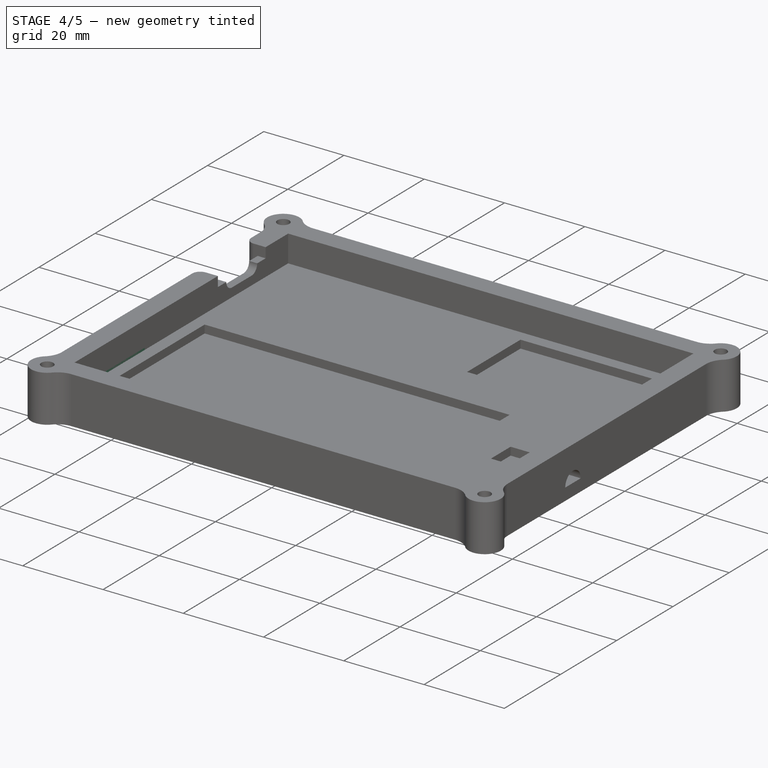
[diagram: stage 4 of 5 — iso view after this stage's code; geometry added in this stage tinted green]
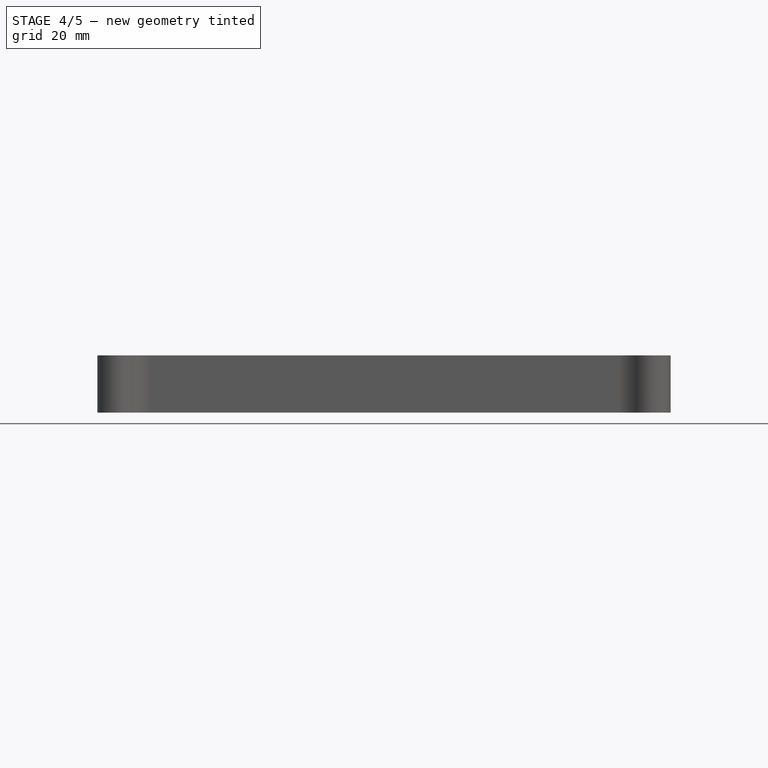
[diagram: stage 4 of 5 — front view after this stage's code; geometry added in this stage tinted green]
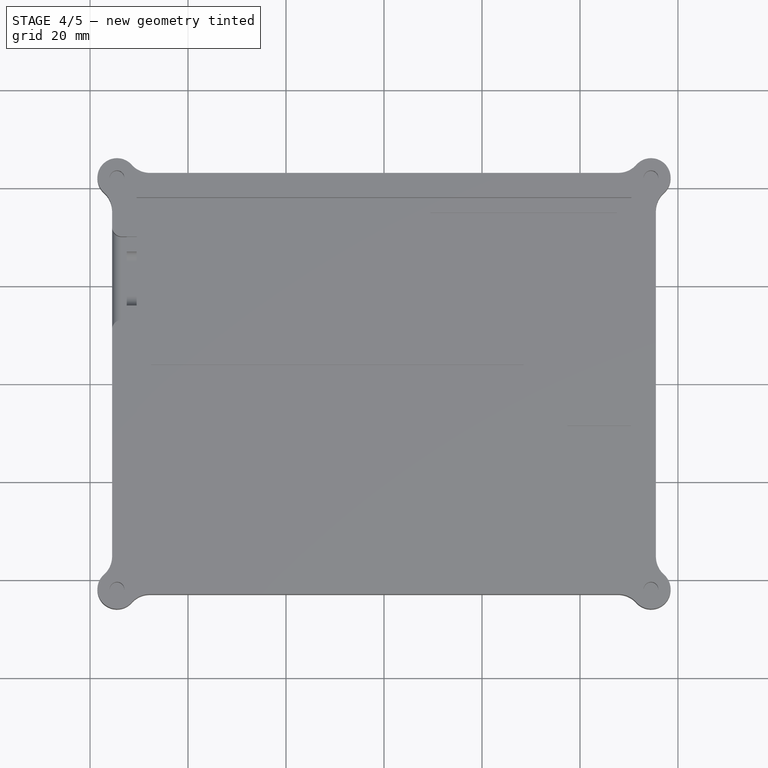
[diagram: stage 4 of 5 — top view after this stage's code; geometry added in this stage tinted green]
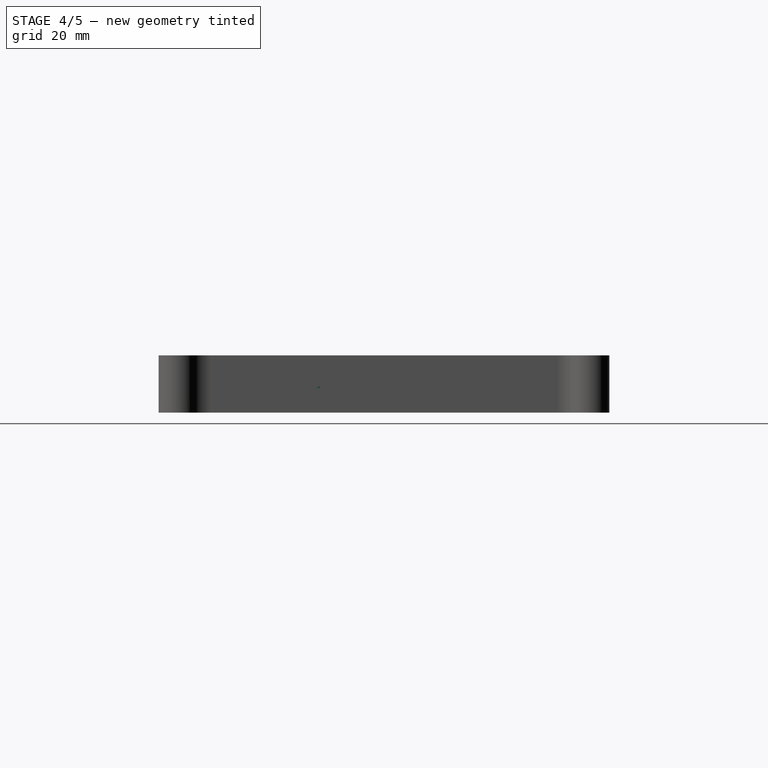
[diagram: stage 4 of 5 — right view after this stage's code; geometry added in this stage tinted green]
FEATURE [Sketcher::SketchObject] Sketch002
  ArcFitTolerance = 1e-06
  AttachmentSupport = -> [XY_Plane]
  FullyConstrained = true
  MakeInternals = false
  MapMode = 5
  expr: Constraints[0] = VarSet.screw_head_diameter
  expr: Constraints[1] = Sketch001.Constraints[1]
  expr: Constraints[2] = Sketch001.Constraints[2]
  expr: Constraints[3] = VarSet.screw_head_diameter
  expr: Constraints[4] = VarSet.screw_head_diameter
  expr: Constraints[5] = VarSet.screw_head_diameter
  sketch-geometry (4):
    g0: Circle CenterX=54.5 CenterY=42 CenterZ=0 NormalX=0 NormalY=0 NormalZ=1 AngleXU=0 Radius=2.75
    g1: Circle CenterX=-54.5 CenterY=42 CenterZ=0 NormalX=0 NormalY=0 NormalZ=1 AngleXU=0 Radius=2.75
    g2: Circle CenterX=54.5 CenterY=-42 CenterZ=0 NormalX=0 NormalY=0 NormalZ=1 AngleXU=0 Radius=2.75
    g3: Circle CenterX=-54.5 CenterY=-42 CenterZ=0 NormalX=0 NormalY=0 NormalZ=1 AngleXU=0 Radius=2.75
  constraints (10):
    c: Diameter(g0) = 5.5
    c: Distance(g0,g-1) = 42
    c: Distance(g0,g-2) = 54.5
    c: Diameter(g1) = 5.5
    c: Diameter(g2) = 5.5
    c: Diameter(g3) = 5.5
    c: Horizontal(g2,g3)
    c: Vertical(g3,g1)
    c: Symmetric(g2,g0,g-1)
    c: Symmetric(g1,g0,g-2)
FEATURE [PartDesign::Pad] Pad001  label="Screw walls"
  BaseFeature = -> Pad
  Direction = (0,0,1)
  Length = 3
  Length2 = 10
  Profile = -> Sketch001
  ReferenceAxis = -> Sketch001 [N_Axis]
  Refine = true
  Suppressed = false
  Type = 0
  expr: Length = VarSet.base_thickness
FEATURE [Sketcher::SketchObject] Sketch003
  ArcFitTolerance = 1e-06
  AttachmentSupport = -> [XY_Plane]
  FullyConstrained = true
  MakeInternals = false
  MapMode = 5
  expr: Constraints[0] = VarSet.screw_thread_diameter
  expr: Constraints[1] = Sketch002.Constraints[1]
  expr: Constraints[2] = Sketch002.Constraints[2]
  expr: Constraints[3] = VarSet.screw_thread_diameter
  expr: Constraints[4] = VarSet.screw_thread_diameter
  expr: Constraints[5] = VarSet.screw_thread_diameter
  sketch-geometry (4):
    g0: Circle CenterX=54.5 CenterY=42 CenterZ=0 NormalX=0 NormalY=0 NormalZ=1 AngleXU=0 Radius=1.5
    g1: Circle CenterX=-54.5 CenterY=42 CenterZ=0 NormalX=0 NormalY=0 NormalZ=1 AngleXU=0 Radius=1.5
    g2: Circle CenterX=54.5 CenterY=-42 CenterZ=0 NormalX=0 NormalY=0 NormalZ=1 AngleXU=0 Radius=1.5
    g3: Circle CenterX=-54.5 CenterY=-42 CenterZ=0 NormalX=0 NormalY=0 NormalZ=1 AngleXU=0 Radius=1.5
  constraints (10):
    c: Diameter(g0) = 3
    c: Distance(g0,g-1) = 42
    c: Distance(g0,g-2) = 54.5
    c: Diameter(g1) = 3
    c: Diameter(g2) = 3
    c: Diameter(g3) = 3
    c: Horizontal(g2,g3)
    c: Vertical(g3,g1)
    c: Symmetric(g2,g0,g-1)
    c: Symmetric(g1,g0,g-2)
FEATURE [PartDesign::Pocket] Pocket  label="Screw head holes"
  BaseFeature = -> Pad001
  Direction = (0,0,1)
  Length = 2
  Length2 = 5
  Profile = -> Sketch002
  ReferenceAxis = -> Sketch002 [N_Axis]
  Refine = true
  Suppressed = false
  Type = 0
  UseCustomVector = true
  expr: Length = VarSet.screw_head_height
FEATURE [PartDesign::Pocket] Pocket001  label="Screw thread holes"
  BaseFeature = -> Pocket
  Direction = (0,0,1)
  Length = 3
  Length2 = 5
  Profile = -> Sketch003
  ReferenceAxis = -> Sketch003 [N_Axis]
  Refine = true
  Suppressed = false
  Type = 0
  UseCustomVector = true
  expr: Length = VarSet.base_thickness
FEATURE [Sketcher::SketchObject] Sketch004
  ArcFitTolerance = 1e-06
  AttachmentSupport = -> [Pocket001]
  FullyConstrained = true
  MakeInternals = false
  MapMode = 5
  Placement = pos=(0,0,3) rot=(0,0,1;0rad)
  expr: Constraints[10] = 37.5 mm - 11.5 mm + 1 mm + VarSet.usb_bonus_width
  expr: Constraints[11] = 50 mm + VarSet.pcb_tolerance
  expr: Constraints[8] = VarSet.usb_wall_thickness
  expr: Constraints[9] = VarSet.usb_bonus_width * 2 + 11 mm
  sketch-geometry (4):
    g0: LineSegment StartX=-52.5 StartY=-13 StartZ=0 EndX=-52.5 EndY=-30 EndZ=0
    g1: LineSegment StartX=-52.5 StartY=-30 StartZ=0 EndX=-50.5 EndY=-30 EndZ=0
    g2: LineSegment StartX=-50.5 StartY=-30 StartZ=0 EndX=-50.5 EndY=-13 EndZ=0
    g3: LineSegment StartX=-50.5 StartY=-13 StartZ=0 EndX=-52.5 EndY=-13 EndZ=0
  constraints (12):
    c: Coincident(g0,g1)
    c: Coincident(g1,g2)
    c: Coincident(g2,g3)
    c: Coincident(g3,g0)
    c: Vertical(g0)
    c: Vertical(g2)
    c: Horizontal(g1)
    c: Horizontal(g3)
    c: DistanceX(g0,g2) = 2
    c: DistanceY(g2,g2) = 17
    c: Distance(g1,g-1) = 30
    c: DistanceX(g1,g-1) = 50.5
FEATURE [PartDesign::Pad] Pad002  label="USB prop"
  BaseFeature = -> Pocket001
  Direction = (0,0,1)
  Length = 2.5
  Length2 = 10
  Profile = -> Sketch004
  ReferenceAxis = -> Sketch004 [N_Axis]
  Refine = true
  Suppressed = false
  Type = 0
  expr: Length = VarSet.pcb_elevation - 2.5 mm
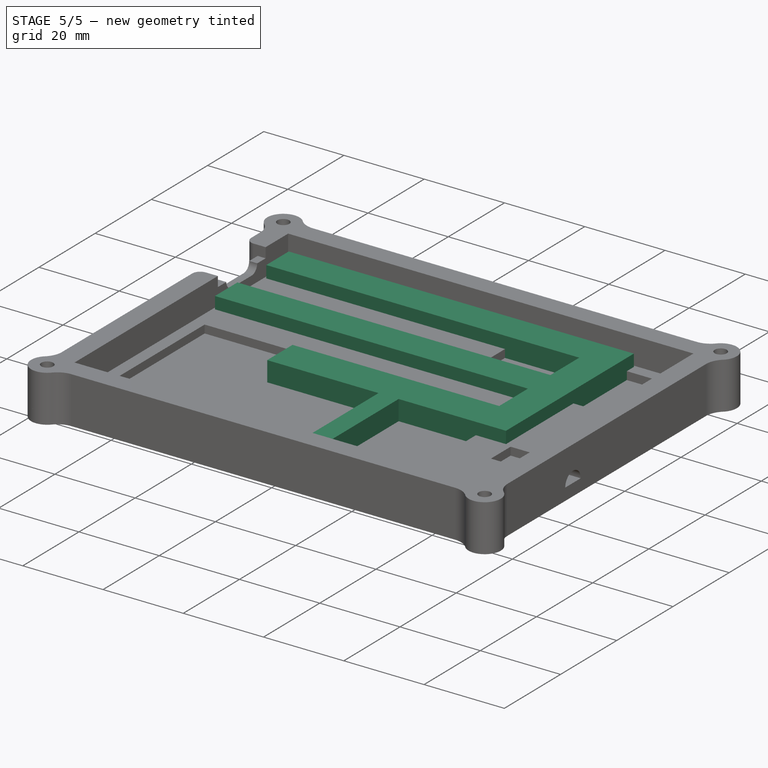
[diagram: stage 5 of 5 — iso view after this stage's code; geometry added in this stage tinted green]
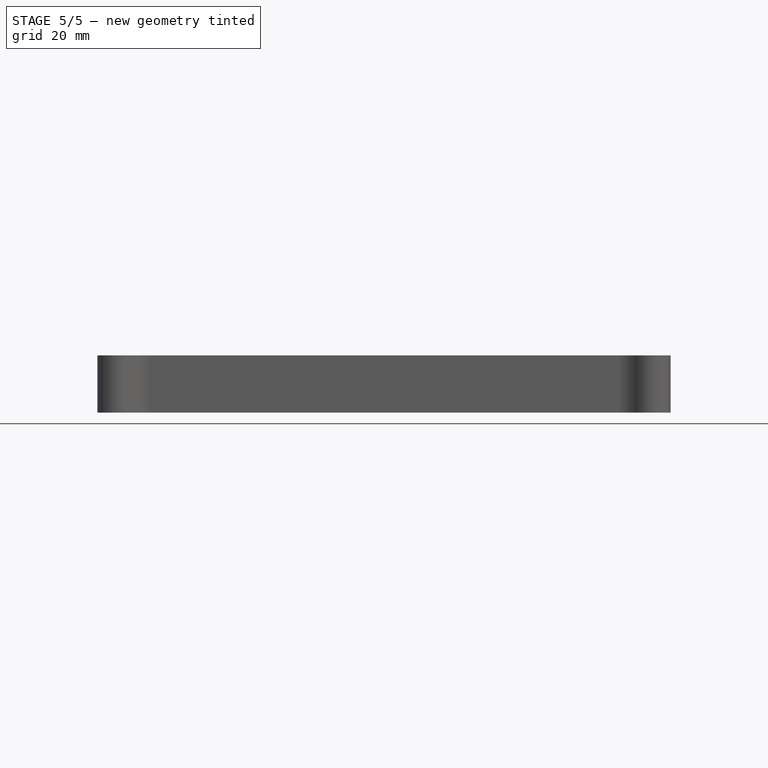
[diagram: stage 5 of 5 — front view after this stage's code; geometry added in this stage tinted green]
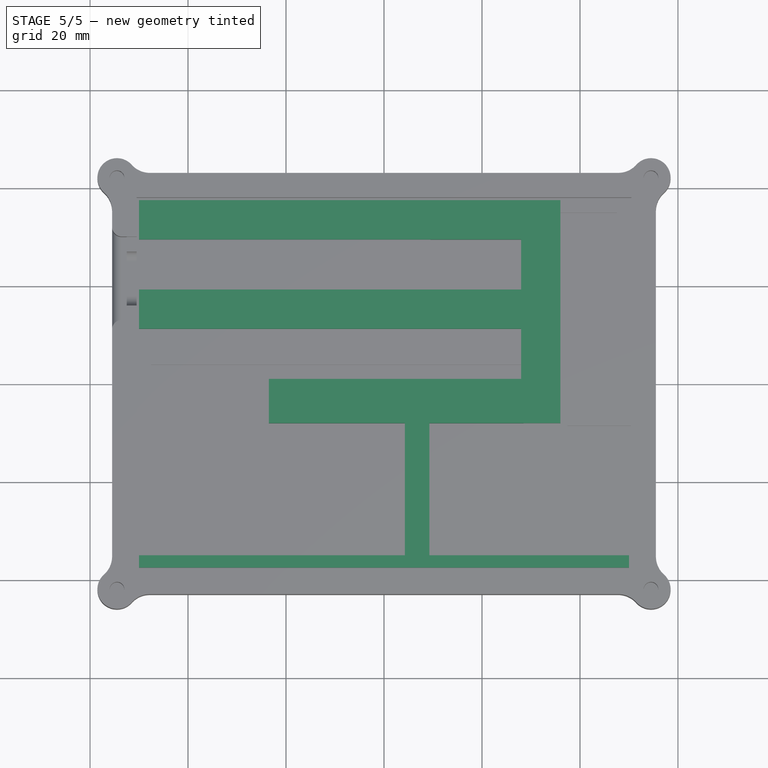
[diagram: stage 5 of 5 — top view after this stage's code; geometry added in this stage tinted green]
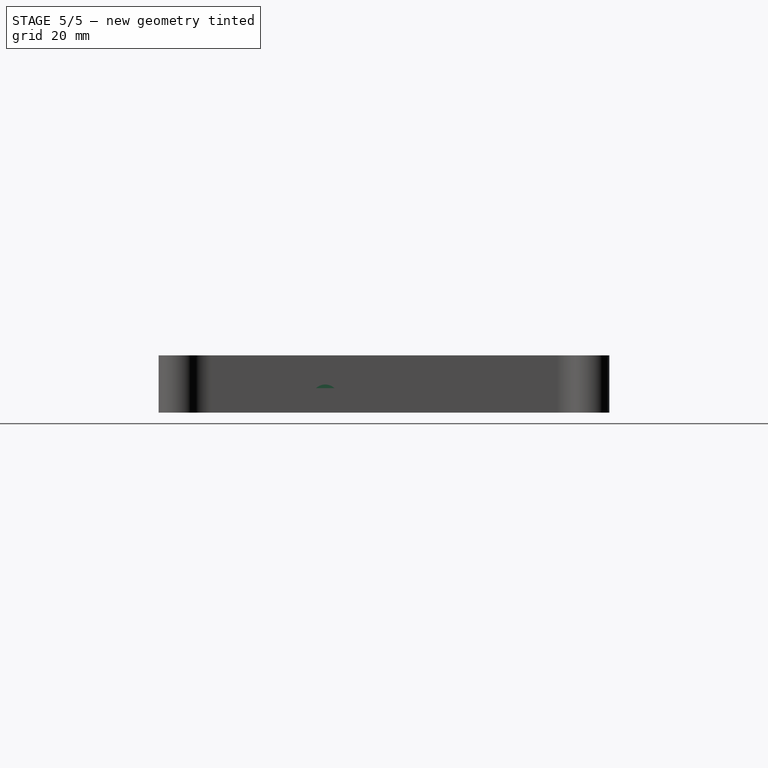
[diagram: stage 5 of 5 — right view after this stage's code; geometry added in this stage tinted green]
FEATURE [Sketcher::SketchObject] Sketch005
  ArcFitTolerance = 1e-06
  AttachmentSupport = -> [Pad002]
  ExternalGeometry = -> [Pad002]
  FullyConstrained = true
  MakeInternals = false
  MapMode = 5
  Placement = pos=(-52.5,0,0) rot=(0.57735,-0.57735,-0.57735;2.0944rad)
  sketch-geometry (7):
    g0: ArcOfCircle CenterX=18 CenterY=5.5 CenterZ=0 NormalX=0 NormalY=0 NormalZ=1 AngleXU=0 Radius=2 StartAngle=1.5708 EndAngle=4.71239
    g1: ArcOfCircle CenterX=25 CenterY=5.5 CenterZ=0 NormalX=0 NormalY=0 NormalZ=1 AngleXU=0 Radius=2 StartAngle=4.71239 EndAngle=7.85398
    g2: LineSegment StartX=18 StartY=7.5 StartZ=0 EndX=25 EndY=7.5 EndZ=0
    g3: LineSegment StartX=18 StartY=3.5 StartZ=0 EndX=25 EndY=3.5 EndZ=0
    g4: LineSegment [constr] StartX=21.5 StartY=5.5 StartZ=0 EndX=21.5 EndY=5.51 EndZ=0
    g5: GeomPoint [constr] X=16 Y=5.5 Z=0
    g6: GeomPoint [constr] X=27 Y=5.5 Z=0
  constraints (16):
    c: Tangent(g0,g2) = 1.5708
    c: Tangent(g0,g3) = -1.5708
    c: Tangent(g1,g2) = 1.5708
    c: Tangent(g1,g3) = -1.5708
    c: Equal(g0,g1)
    c: Horizontal(g3)
    c: PointOnObject(g0,g-3)
    c: Symmetric(g-3,g-3,g4)
    c: Symmetric(g1,g0,g4)
    c: DistanceY(g1,g1) = 2
    c: PointOnObject(g5,g-3)
    c: PointOnObject(g5,g0)
    c: PointOnObject(g6,g-3)
    c: PointOnObject(g6,g1)
    c: DistanceX(g5,g6) = 11
    c: DistanceY(g4,g4) = 0.01
FEATURE [PartDesign::Pocket] Pocket002  label="USB hole"
  BaseFeature = -> Pad002
  Direction = (1,0,0)
  Length = 2
  Length2 = 5
  Profile = -> Sketch005
  ReferenceAxis = -> Sketch005 [N_Axis]
  Refine = true
  Suppressed = false
  Type = 0
  expr: Length = VarSet.usb_wall_thickness
FEATURE [PartDesign::Fillet] Fillet  label="Screw-base fillets"
  Base = -> Pocket002 [Edge40,Edge39,Edge36,Edge4,Edge2,Edge18,Edge37,Edge38]
  BaseFeature = -> Pocket002
  Radius = 5
  Refine = true
  SupportTransform = false
  Suppressed = false
  UseAllEdges = false
  expr: Radius = VarSet.screw_base_fillet_radius
FEATURE [Sketcher::SketchObject] Sketch006
  ArcFitTolerance = 1e-06
  AttachmentSupport = -> [Fillet]
  FullyConstrained = true
  MakeInternals = false
  MapMode = 5
  Placement = pos=(0,0,3) rot=(0,0,1;0rad)
  sketch-geometry (20):
    g0: LineSegment StartX=-50 StartY=-37.5 StartZ=0 EndX=-50 EndY=-35 EndZ=0
    g1: LineSegment StartX=-50 StartY=-35 StartZ=0 EndX=4.25 EndY=-35 EndZ=0
    g2: LineSegment StartX=4.25 StartY=-35 StartZ=0 EndX=4.25 EndY=-8 EndZ=0
    g3: LineSegment StartX=4.25 StartY=-8 StartZ=0 EndX=-23.5 EndY=-8 EndZ=0
    g4: LineSegment StartX=-23.5 StartY=-8 StartZ=0 EndX=-23.5 EndY=1 EndZ=0
    g5: LineSegment StartX=-23.5 StartY=1 StartZ=0 EndX=28 EndY=1 EndZ=0
    g6: LineSegment StartX=28 StartY=1 StartZ=0 EndX=28 EndY=11.25 EndZ=0
    g7: LineSegment StartX=28 StartY=11.25 StartZ=0 EndX=-50 EndY=11.25 EndZ=0
    g8: LineSegment StartX=-50 StartY=11.25 StartZ=0 EndX=-50 EndY=19.25 EndZ=0
    g9: LineSegment StartX=-50 StartY=19.25 StartZ=0 EndX=28 EndY=19.25 EndZ=0
    g10: LineSegment StartX=28 StartY=19.25 StartZ=0 EndX=28 EndY=29.5 EndZ=0
    g11: LineSegment StartX=28 StartY=29.5 StartZ=0 EndX=-50 EndY=29.5 EndZ=0
    g12: LineSegment StartX=-50 StartY=29.5 StartZ=0 EndX=-50 EndY=37.5 EndZ=0
    g13: LineSegment StartX=-50 StartY=37.5 StartZ=0 EndX=36 EndY=37.5 EndZ=0
    g14: LineSegment StartX=36 StartY=37.5 StartZ=0 EndX=36 EndY=-8 EndZ=0
    g15: LineSegment StartX=36 StartY=-8 StartZ=0 EndX=9.25 EndY=-8 EndZ=0
    g16: LineSegment StartX=9.25 StartY=-8 StartZ=0 EndX=9.25 EndY=-35 EndZ=0
    g17: LineSegment StartX=9.25 StartY=-35 StartZ=0 EndX=50 EndY=-35 EndZ=0
    g18: LineSegment StartX=50 StartY=-35 StartZ=0 EndX=50 EndY=-37.5 EndZ=0
    g19: LineSegment StartX=50 StartY=-37.5 StartZ=0 EndX=-50 EndY=-37.5 EndZ=0
  constraints (60):
    c: Vertical(g0)
    c: Coincident(g0,g1)
    c: Horizontal(g1)
    c: Coincident(g1,g2)
    c: Vertical(g2)
    c: Coincident(g2,g3)
    c: Horizontal(g3)
    c: Coincident(g3,g4)
    c: Vertical(g4)
    c: Coincident(g4,g5)
    c: Horizontal(g5)
    c: Coincident(g5,g6)
    c: Vertical(g6)
    c: Coincident(g6,g7)
    c: Horizontal(g7)
    c: Coincident(g7,g8)
    c: Vertical(g8)
    c: Coincident(g8,g9)
    c: Horizontal(g9)
    c: Coincident(g9,g10)
    c: Vertical(g10)
    c: Coincident(g10,g11)
    c: Horizontal(g11)
    c: Coincident(g11,g12)
    c: Coincident(g12,g13)
    c: Horizontal(g13)
    c: Vertical(g12)
    c: Coincident(g13,g14)
    c: Vertical(g14)
    c: Coincident(g14,g15)
    c: Horizontal(g15)
    c: Coincident(g15,g16)
    c: Vertical(g16)
    c: Coincident(g16,g17)
    c: Horizontal(g17)
    c: Coincident(g17,g18)
    c: Vertical(g18)
    c: Coincident(g18,g19)
    c: Coincident(g19,g0)
    c: Horizontal(g19)
    c: Vertical(g8,g11)
    c: Vertical(g6,g9)
    c: Horizontal(g15,g2)
    c: Horizontal(g16,g1)
    c: Distance(g0,g-2) = 50
    c: Distance(g0,g-1) = 37.5
    c: DistanceY(g0,g0) = 2.5
    c: DistanceX(g19,g19) = 100
    c: DistanceX(g1,g16) = 5
    c: Distance(g1,g1) = 54.25
    c: DistanceY(g16,g16) = 27
    c: DistanceX(g3,g3) = 27.75
    c: DistanceY(g4,g4) = 9
    c: DistanceX(g15,g15) = 26.75
    c: Distance(g5,g14) = 8
    c: DistanceY(g14,g14) = 45.5
    c: DistanceY(g12,g12) = 8
    c: Equal(g12,g8)
    c: Equal(g6,g10)
    c: DistanceX(g7,g7) = 78
FEATURE [PartDesign::Pad] Pad003  label="PCB prop"
  BaseFeature = -> Fillet
  Direction = (0,0,1)
  Length = 5
  Length2 = 10
  Profile = -> Sketch006
  ReferenceAxis = -> Sketch006 [N_Axis]
  Refine = true
  Suppressed = false
  Type = 0
  expr: Length = VarSet.pcb_elevation
FEATURE [Sketcher::SketchObject] Sketch007
  ArcFitTolerance = 1e-06
  AttachmentSupport = -> [Pad003]
  ExternalGeometry = -> [Pad003]
  FullyConstrained = true
  MakeInternals = false
  MapMode = 5
  Placement = pos=(0,0,3) rot=(0,0,1;0rad)
  expr: Constraints[9] = VarSet.wall_thickness - VarSet.usb_wall_thickness
  sketch-geometry (4):
    g0: LineSegment StartX=-52.5 StartY=-13 StartZ=0 EndX=-55.5 EndY=-13 EndZ=0
    g1: LineSegment StartX=-55.5 StartY=-13 StartZ=0 EndX=-55.5 EndY=-30 EndZ=0
    g2: LineSegment StartX=-55.5 StartY=-30 StartZ=0 EndX=-52.5 EndY=-30 EndZ=0
    g3: LineSegment StartX=-52.5 StartY=-30 StartZ=0 EndX=-52.5 EndY=-13 EndZ=0
  constraints (10):
    c: Coincident(g0,g1)
    c: Coincident(g1,g2)
    c: Coincident(g2,g3)
    c: Coincident(g3,g0)
    c: Horizontal(g0)
    c: Horizontal(g2)
    c: Vertical(g1)
    c: Coincident(g0,g-3)
    c: Coincident(g-4,g2)
    c: DistanceX(g2,g2) = 3
FEATURE [PartDesign::Pocket] Pocket003  label="USB hole 2"
  BaseFeature = -> Pad003
  Direction = (0,0,-1)
  Length = 3
  Length2 = 5
  Profile = -> Sketch007
  ReferenceAxis = -> Sketch007 [N_Axis]
  Refine = true
  Suppressed = false
  Type = 0
  expr: Length = VarSet.base_thickness
FEATURE [PartDesign::Fillet] Fillet001  label="USB outer fillets"
  Base = -> Pocket003 [Edge85,Edge87]
  BaseFeature = -> Pocket003
  Radius = 2
  Refine = true
  SupportTransform = false
  Suppressed = false
  UseAllEdges = false
  expr: Radius = VarSet.usb_outer_fillet_radius
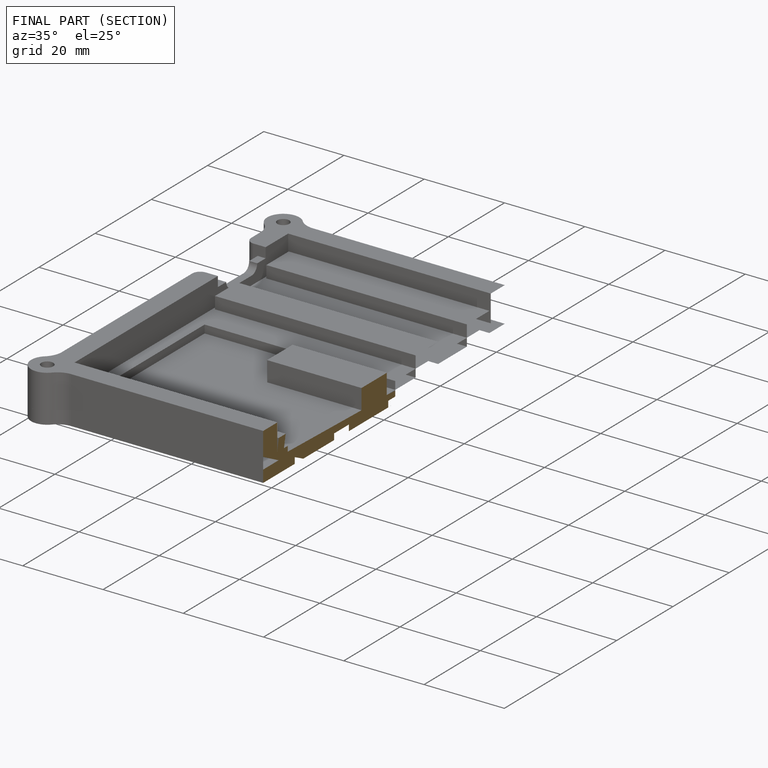
[diagram: finished part — half-section view (interior)]
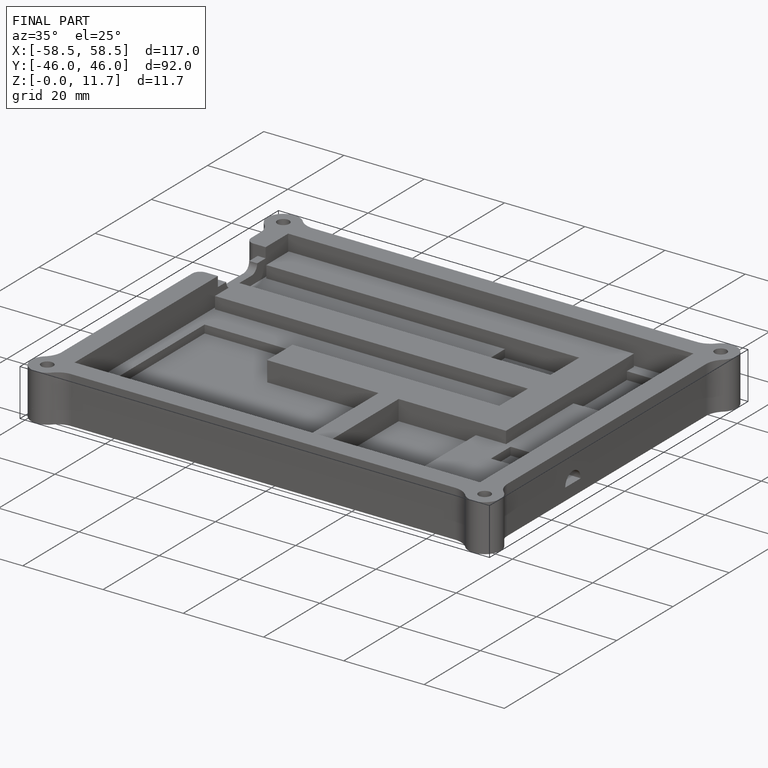
[diagram: finished part — iso view with bounding-box wireframe]
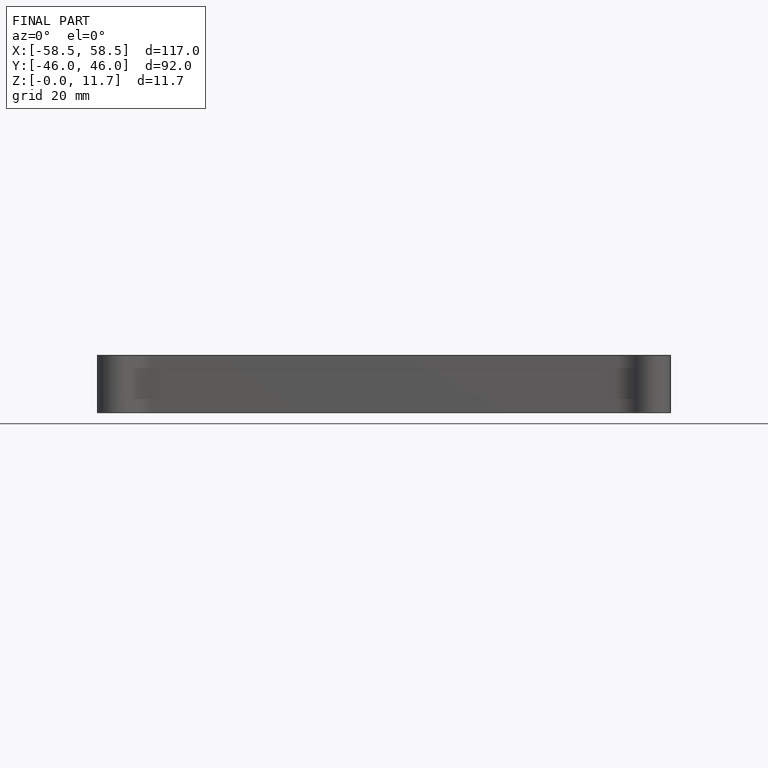
[diagram: finished part — front view with bounding-box wireframe]
